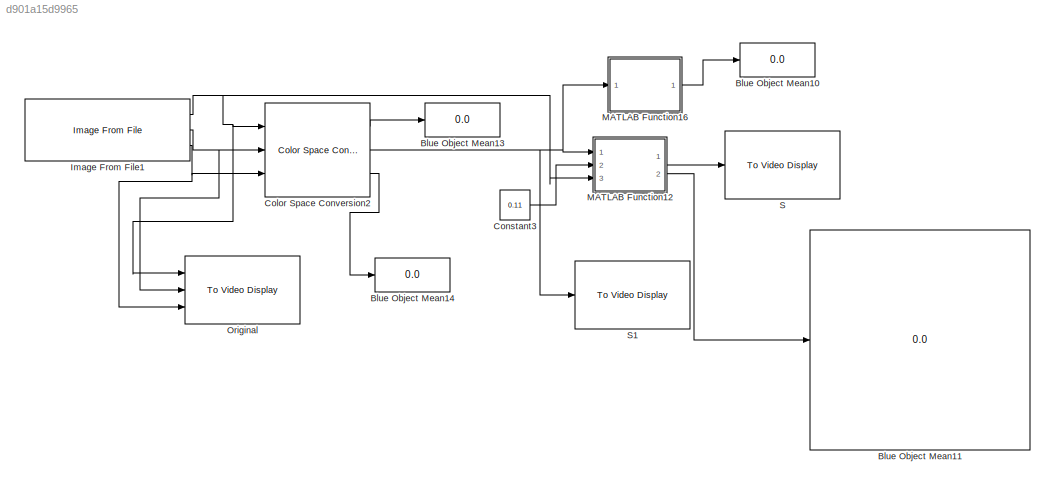
MODEL slx_d901a15d9965
KIND model
CONFIG AbsTol = auto
CONFIG FixedStep = auto
CONFIG MaxStep = auto
CONFIG MinStep = auto
CONFIG RelTol = 1e-3
CONFIG SampleTimeConstraint = Unconstrained
CONFIG Solver = VariableStepAuto
CONFIG SolverMode = Auto
CONFIG SolverName = VariableStepAuto
CONFIG StartTime = 0.0
CONFIG StopTime = 10.0
BLOCK [Display] Blue Object Mean10
  Decimation = 1
  Ports = [1]
BLOCK [Display] Blue Object Mean11
  Decimation = 1
  Ports = [1]
BLOCK [Display] Blue Object Mean13
  Decimation = 1
  Format = long
  Ports = [1]
BLOCK [Display] Blue Object Mean14
  Decimation = 1
  Ports = [1]
BLOCK [Reference] Color Space Conversion2  REF=visionconversions/Color Space
 Conversion
  Ports = [3, 3]
  SourceBlock = visionconversions/Color Space\n Conversion
  SourceType = Color Space Conversion
BLOCK [Constant] Constant3
  OutDataTypeStr = double
  Value = 0.11
BLOCK [Reference] Image From File1  REF=visionsources/Image From File
  Ports = [0, 3]
  SourceBlock = visionsources/Image From File
  SourceType = Image From File
  Tag = vipblks_nd
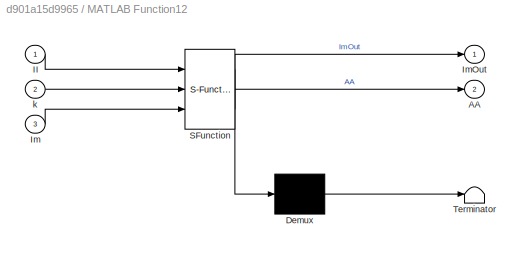
BLOCK [SubSystem] MATLAB Function12
  ErrorFcn = Stateflow.Translate.translate
  PermitHierarchicalResolution = ExplicitOnly
  Ports = [3, 2]
  RequestExecContextInheritance = off
  SFBlockType = MATLAB Function
  TreatAsAtomicUnit = on
  Variant = off
BLOCK [Demux] MATLAB Function12/ Demux 
  Outputs = 1
  Ports = [1, 1]
BLOCK [S-Function] MATLAB Function12/ SFunction 
  EnableBusSupport = on
  FunctionName = sf_sfun
  PortCounts = [3 3]
  Ports = [3, 3]
  SFunctionDeploymentMode = off
  Tag = Stateflow S-Function HSV_WithoutBackgroundRemove_Threshoding 12
BLOCK [Terminator] MATLAB Function12/ Terminator 
BLOCK [Outport] MATLAB Function12/AA
  IconDisplay = Port number
  Port = 2
BLOCK [Inport] MATLAB Function12/II
  IconDisplay = Port number
BLOCK [Inport] MATLAB Function12/Im
  IconDisplay = Port number
  Port = 3
BLOCK [Outport] MATLAB Function12/ImOut
  IconDisplay = Port number
BLOCK [Inport] MATLAB Function12/k
  IconDisplay = Port number
  Port = 2
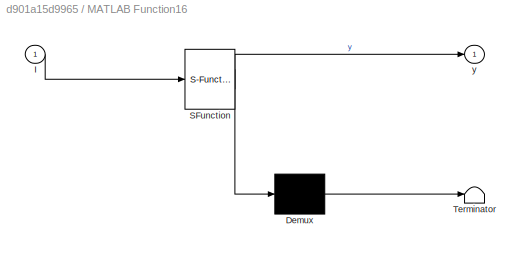
BLOCK [SubSystem] MATLAB Function16
  ErrorFcn = Stateflow.Translate.translate
  PermitHierarchicalResolution = ExplicitOnly
  Ports = [1, 1]
  RequestExecContextInheritance = off
  SFBlockType = MATLAB Function
  TreatAsAtomicUnit = on
  Variant = off
BLOCK [Demux] MATLAB Function16/ Demux 
  Outputs = 1
  Ports = [1, 1]
BLOCK [S-Function] MATLAB Function16/ SFunction 
  EnableBusSupport = on
  FunctionName = sf_sfun
  PortCounts = [1 2]
  Ports = [1, 2]
  SFunctionDeploymentMode = off
  Tag = Stateflow S-Function HSV_WithoutBackgroundRemove_Threshoding 13
BLOCK [Terminator] MATLAB Function16/ Terminator 
BLOCK [Inport] MATLAB Function16/I
  IconDisplay = Port number
BLOCK [Outport] MATLAB Function16/y
  IconDisplay = Port number
BLOCK [Reference] Original  REF=visionsinks/To Video Display
  Ports = [3]
  SourceBlock = visionsinks/To Video Display
  SourceType = To Video Display
BLOCK [Reference] S  REF=visionsinks/To Video Display
  Ports = [1]
  SourceBlock = visionsinks/To Video Display
  SourceType = To Video Display
BLOCK [Reference] S1  REF=visionsinks/To Video Display
  Ports = [1]
  SourceBlock = visionsinks/To Video Display
  SourceType = To Video Display
LINE Color Space Conversion2:1 -> Blue Object Mean13:1
NET Color Space Conversion2:2 -> MATLAB Function12:1, MATLAB Function16:1, S1:1
LINE Color Space Conversion2:3 -> Blue Object Mean14:1
LINE Constant3:1 -> MATLAB Function12:2
NET Image From File1:1 -> Color Space Conversion2:1, MATLAB Function12:3, Original:1
NET Image From File1:2 -> Color Space Conversion2:2, Original:2
NET Image From File1:3 -> Color Space Conversion2:3, Original:3
LINE MATLAB Function12:1 -> S:1
LINE MATLAB Function12:2 -> Blue Object Mean11:1
LINE MATLAB Function16:1 -> Blue Object Mean10:1
note: NET lines group one-source signal fan-out (src -> all destinations, sorted); 1:1 wires keep LINE
CHART MATLAB Function12 states=1 transitions=1
  STATE_LABEL 'eML_blk_kernel()'
  STATE_LABEL "SCRIPT:\nfunction [ImOut,AA] = fcn(II,k,Im)\nI=Im;\ncoder.extrinsic('graythresh');\ncoder.extrinsic('im2bw');\nlevel = graythresh(I);\nBW = im2bw(I,level);\nL=double(I);\ncoder.extrinsic('bwlabeln');\nNUM=1;\nBW2=imcomplement(BW);\n[L, NUM] = bwlabeln(BW2);\narea=1;\nn=1;\nR1=double(II);\nAA=double(zeros(100,1));\ni=1;\nfor n=1:NUM\n    [r, c] = find(L==n);\n    %if (max(c)~= min(c))&&(max(r)~= min(r))\n    if ((max(...<+207ch>"
CHART MATLAB Function16 states=1 transitions=1
  STATE_LABEL 'eML_blk_kernel()'
  STATE_LABEL 'SCRIPT:\nfunction y = fcn(I)\ny=mean(I(:));'
